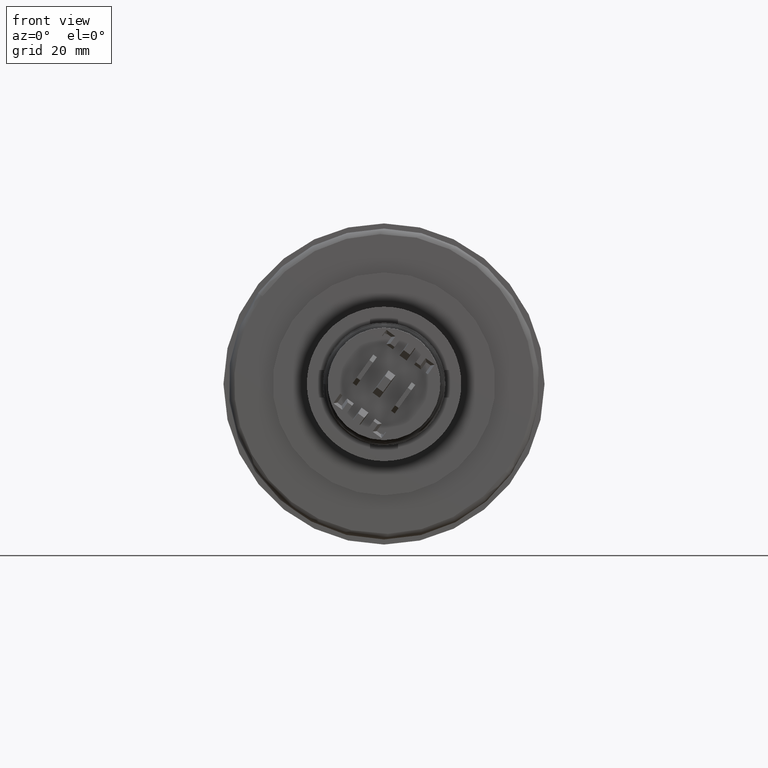
[diagram: clean part render]
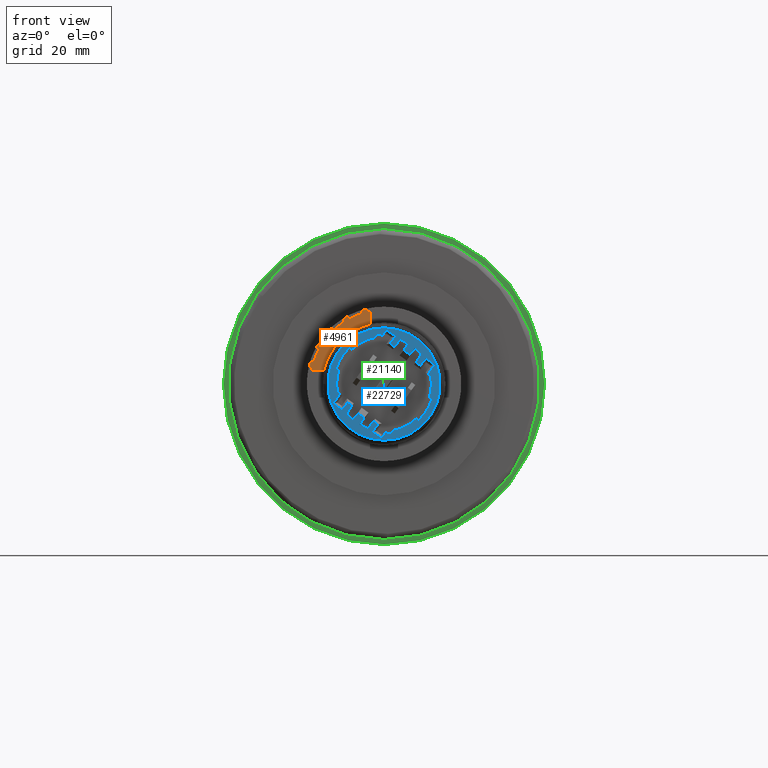
[diagram: same view with three faces highlighted in distinct colors, each labeled with its STEP entity id]
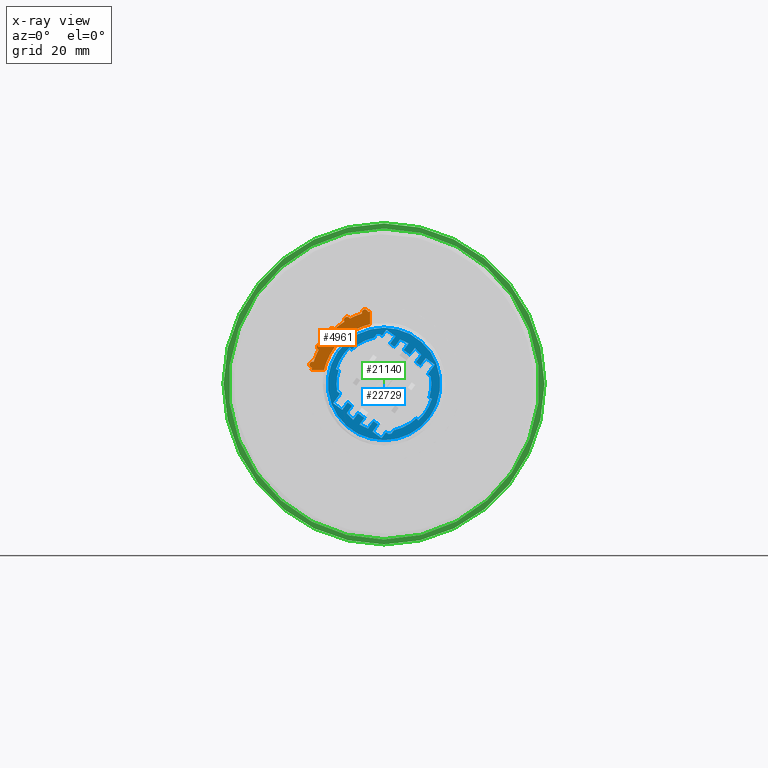
[diagram: x-ray of the same camera — body ghosted, the three highlighted faces saturated]
A machine part, front view with three faces highlighted in distinct colors.
The next image is the same camera in x-ray (body ghosted, the three faces saturated) — at least one of them is partly hidden behind the body in this view.
Their STEP definitions:

[orange] entity #4961 — the highlighted planar face has unit normal (0, -1, 0).
#106 = DIRECTION ( 'NONE',  ( 0.0000000000000000000, 1.000000000000000000, 0.0000000000000000000 ) ) ;
#154 = AXIS2_PLACEMENT_3D ( 'NONE', #5065, #17495, #6865 ) ;
#289 = AXIS2_PLACEMENT_3D ( 'NONE', #12163, #1410, #13935 ) ;
#300 = VERTEX_POINT ( 'NONE', #22346 ) ;
#347 = CARTESIAN_POINT ( 'NONE',  ( -0.2597496053560820500, -1.366141732283465500, 0.3482410758244937600 ) ) ;
#512 = CIRCLE ( 'NONE', #16972, 0.02263779527559057000 ) ;
#541 = AXIS2_PLACEMENT_3D ( 'NONE', #13089, #2396, #14902 ) ;
#567 = CARTESIAN_POINT ( 'NONE',  ( -0.09842519685039348400, -1.366141732283464600, 0.5122840031367366100 ) ) ;
#593 = DIRECTION ( 'NONE',  ( 0.0000000000000000000, 0.0000000000000000000, 1.000000000000000000 ) ) ;
#880 = ORIENTED_EDGE ( 'NONE', *, *, #7342, .F. ) ;
#1024 = ORIENTED_EDGE ( 'NONE', *, *, #20943, .F. ) ;
#1344 = AXIS2_PLACEMENT_3D ( 'NONE', #23120, #12534, #1823 ) ;
#1380 = ORIENTED_EDGE ( 'NONE', *, *, #20737, .F. ) ;
#1410 = DIRECTION ( 'NONE',  ( 0.0000000000000000000, 1.000000000000000000, 0.0000000000000000000 ) ) ;
#1729 = DIRECTION ( 'NONE',  ( -6.123032000000000300E-017, 1.000000000000000000, 6.123032000000000300E-017 ) ) ;
#1756 = VERTEX_POINT ( 'NONE', #6507 ) ;
#1823 = DIRECTION ( 'NONE',  ( 0.0000000000000000000, 0.0000000000000000000, 1.000000000000000000 ) ) ;
#1973 = ORIENTED_EDGE ( 'NONE', *, *, #21035, .F. ) ;
#2205 = CARTESIAN_POINT ( 'NONE',  ( -0.3197517589457649100, -1.366141732283464600, 0.2954151513691956100 ) ) ;
#2227 = CARTESIAN_POINT ( 'NONE',  ( -0.2271832924560667200, -1.366141732283465000, 0.3686978800177334600 ) ) ;
#2374 = CARTESIAN_POINT ( 'NONE',  ( -0.1350138719530869500, -1.366141732283464600, 0.5038786298555180100 ) ) ;
#2396 = DIRECTION ( 'NONE',  ( 0.0000000000000000000, 1.000000000000000000, 0.0000000000000000000 ) ) ;
#3301 = CIRCLE ( 'NONE', #19958, 0.02263779527559051800 ) ;
#3688 = ORIENTED_EDGE ( 'NONE', *, *, #20866, .F. ) ;
#3887 = VERTEX_POINT ( 'NONE', #7307 ) ;
#4037 = CARTESIAN_POINT ( 'NONE',  ( -0.3590821806192726100, -1.366141732283464600, 0.2445445269965523800 ) ) ;
#4187 = DIRECTION ( 'NONE',  ( 0.0000000000000000000, 0.0000000000000000000, 1.000000000000000000 ) ) ;
#4210 = VERTEX_POINT ( 'NONE', #19994 ) ;
#4324 = DIRECTION ( 'NONE',  ( 0.0000000000000000000, 1.000000000000000000, 0.0000000000000000000 ) ) ;
#4657 = AXIS2_PLACEMENT_3D ( 'NONE', #18828, #8210, #20589 ) ;
#4792 = AXIS2_PLACEMENT_3D ( 'NONE', #8053, #20436, #9863 ) ;
#4816 = AXIS2_PLACEMENT_3D ( 'NONE', #21111, #10522, #22892 ) ;
#4961 = ADVANCED_FACE ( 'NONE', ( #19178 ), #8380, .T. ) ;
#5065 = CARTESIAN_POINT ( 'NONE',  ( -0.2608267716535434500, -1.366141732283464600, 0.4517652204781026400 ) ) ;
#5148 = EDGE_CURVE ( 'NONE', #4210, #3887, #3301, .T. ) ;
#5269 = VERTEX_POINT ( 'NONE', #6377 ) ;
#5282 = CIRCLE ( 'NONE', #4792, 0.02263779527559051800 ) ;
#5689 = CARTESIAN_POINT ( 'NONE',  ( 6.993531496062993800E-017, -1.366141732283464600, 1.311287007874015700E-016 ) ) ;
#5795 = ORIENTED_EDGE ( 'NONE', *, *, #22522, .F. ) ;
#5840 = CARTESIAN_POINT ( 'NONE',  ( -0.3839109235958693100, -1.366141732283464600, 0.2033482826158637700 ) ) ;
#6004 = VERTEX_POINT ( 'NONE', #19554 ) ;
#6022 = CARTESIAN_POINT ( 'NONE',  ( -0.5122840031367365000, -1.366141732283464600, 0.09842519685039385900 ) ) ;
#6377 = CARTESIAN_POINT ( 'NONE',  ( -0.4517652204781028600, -1.366141732283464600, 0.2834645669291334700 ) ) ;
#6507 = CARTESIAN_POINT ( 'NONE',  ( -0.3688647579024312800, -1.366141732283464600, 0.3915025531780217400 ) ) ;
#6556 = CARTESIAN_POINT ( 'NONE',  ( -0.5092618826978239100, -1.366141732283464600, 0.1130254576451976800 ) ) ;
#6796 = LINE ( 'NONE', #17162, #10987 ) ;
#6865 = DIRECTION ( 'NONE',  ( 0.0000000000000000000, 0.0000000000000000000, 1.000000000000000000 ) ) ;
#6911 = AXIS2_PLACEMENT_3D ( 'NONE', #12440, #1729, #14242 ) ;
#6922 = VERTEX_POINT ( 'NONE', #21317 ) ;
#7004 = CIRCLE ( 'NONE', #154, 0.02263779527559058700 ) ;
#7184 = CARTESIAN_POINT ( 'NONE',  ( -0.3688647579024312800, -1.366141732283464600, 0.3688647579024311700 ) ) ;
#7187 = EDGE_CURVE ( 'NONE', #12870, #5269, #14985, .T. ) ;
#7200 = ORIENTED_EDGE ( 'NONE', *, *, #12352, .F. ) ;
#7307 = CARTESIAN_POINT ( 'NONE',  ( -0.1350138719530869500, -1.366141732283464600, 0.5265164251311085200 ) ) ;
#7313 = EDGE_CURVE ( 'NONE', #17860, #1756, #21574, .T. ) ;
#7329 = DIRECTION ( 'NONE',  ( 0.0000000000000000000, 1.000000000000000000, 0.0000000000000000000 ) ) ;
#7342 = EDGE_CURVE ( 'NONE', #16706, #300, #14127, .T. ) ;
#7478 = DIRECTION ( 'NONE',  ( 0.0000000000000000000, 0.0000000000000000000, 1.000000000000000000 ) ) ;
#7552 = CARTESIAN_POINT ( 'NONE',  ( -0.1907682790094035500, -1.366141732283464400, 0.3899888910965390600 ) ) ;
#7555 = CIRCLE ( 'NONE', #289, 0.5216535433070866900 ) ;
#7639 = CARTESIAN_POINT ( 'NONE',  ( -0.4039410939763878900, -1.366141732283464600, 0.1599126358994504800 ) ) ;
#7660 = CARTESIAN_POINT ( 'NONE',  ( -0.2033310471216363800, -1.366141732283464600, 0.3834399840505783300 ) ) ;
#7787 = CIRCLE ( 'NONE', #4657, 0.02263779527559055300 ) ;
#8040 = CARTESIAN_POINT ( 'NONE',  ( -0.1130254576451982000, -1.366141732283464600, 0.5092618826978240200 ) ) ;
#8053 = CARTESIAN_POINT ( 'NONE',  ( -0.1350138719530869500, -1.366141732283464600, 0.5038786298555180100 ) ) ;
#8210 = DIRECTION ( 'NONE',  ( 0.0000000000000000000, 1.000000000000000000, 0.0000000000000000000 ) ) ;
#8331 = ORIENTED_EDGE ( 'NONE', *, *, #21008, .F. ) ;
#8380 = PLANE ( 'NONE',  #20568 ) ;
#8454 = DIRECTION ( 'NONE',  ( 0.0000000000000000000, -1.000000000000000000, 0.0000000000000000000 ) ) ;
#8487 = CARTESIAN_POINT ( 'NONE',  ( -0.4975464564180052700, -1.366141732283464600, 0.1567480237538080900 ) ) ;
#8492 = VERTEX_POINT ( 'NONE', #8487 ) ;
#8528 = DIRECTION ( 'NONE',  ( 0.0000000000000000000, 1.000000000000000000, 0.0000000000000000000 ) ) ;
#8692 = CARTESIAN_POINT ( 'NONE',  ( -0.2271832924560667200, -1.366141732283465000, 0.3686978800177334600 ) ) ;
#8695 = CIRCLE ( 'NONE', #6911, 0.4330708661417324000 ) ;
#8959 = DIRECTION ( 'NONE',  ( 0.0000000000000000000, 0.0000000000000000000, 1.000000000000000000 ) ) ;
#9036 = LINE ( 'NONE', #22320, #13753 ) ;
#9057 = CARTESIAN_POINT ( 'NONE',  ( -0.4626560638224167500, -1.366141732283464600, 0.2409808827546003300 ) ) ;
#9119 = VERTEX_POINT ( 'NONE', #6022 ) ;
#9157 = ORIENTED_EDGE ( 'NONE', *, *, #5148, .F. ) ;
#9380 = VERTEX_POINT ( 'NONE', #22418 ) ;
#9439 = CARTESIAN_POINT ( 'NONE',  ( -0.4191765491987241000, -1.366141732283465200, 0.1141773463922378900 ) ) ;
#9863 = DIRECTION ( 'NONE',  ( 0.0000000000000000000, 0.0000000000000000000, 1.000000000000000000 ) ) ;
#9871 = DIRECTION ( 'NONE',  ( 0.0000000000000000000, 1.000000000000000000, 0.0000000000000000000 ) ) ;
#9967 = DIRECTION ( 'NONE',  ( -0.0000000000000000000, 0.0000000000000000000, 1.000000000000000000 ) ) ;
#10522 = DIRECTION ( 'NONE',  ( 0.0000000000000000000, 1.000000000000000000, 0.0000000000000000000 ) ) ;
#10673 = ORIENTED_EDGE ( 'NONE', *, *, #20977, .F. ) ;
#10709 = VERTEX_POINT ( 'NONE', #8040 ) ;
#10916 = CARTESIAN_POINT ( 'NONE',  ( -0.5038786298555177900, -1.366141732283464600, 0.1350138719530861700 ) ) ;
#10987 = VECTOR ( 'NONE', #22469, 39.37007874015748100 ) ;
#11154 = CARTESIAN_POINT ( 'NONE',  ( -0.2465601585790106200, -1.366141732283463900, 0.3577034228271948600 ) ) ;
#11241 = VERTEX_POINT ( 'NONE', #18282 ) ;
#11384 = DIRECTION ( 'NONE',  ( 0.0000000000000000000, 1.000000000000000000, 0.0000000000000000000 ) ) ;
#11443 = EDGE_CURVE ( 'NONE', #21548, #17902, #8695, .T. ) ;
#11698 = CARTESIAN_POINT ( 'NONE',  ( -0.3845209987728074300, -1.366141732283464600, 0.3525138589440154300 ) ) ;
#11769 = CARTESIAN_POINT ( 'NONE',  ( -0.09842519685039348400, -1.366141732283464600, 0.4217378993233967800 ) ) ;
#12163 = CARTESIAN_POINT ( 'NONE',  ( 6.993531496062993800E-017, -1.366141732283464600, 1.311287007874015700E-016 ) ) ;
#12352 = EDGE_CURVE ( 'NONE', #3887, #10709, #5282, .T. ) ;
#12386 = EDGE_CURVE ( 'NONE', #5269, #9380, #7787, .T. ) ;
#12440 = CARTESIAN_POINT ( 'NONE',  ( 1.053784206299212500E-016, -1.366141732283464600, -1.795928677165353200E-017 ) ) ;
#12534 = DIRECTION ( 'NONE',  ( 0.0000000000000000000, 1.000000000000000000, 0.0000000000000000000 ) ) ;
#12689 = DIRECTION ( 'NONE',  ( 0.0000000000000000000, 0.0000000000000000000, 1.000000000000000000 ) ) ;
#12870 = VERTEX_POINT ( 'NONE', #9057 ) ;
#12922 = CARTESIAN_POINT ( 'NONE',  ( -0.2972719823533173700, -1.366141732283465700, 0.3180323436997245000 ) ) ;
#13089 = CARTESIAN_POINT ( 'NONE',  ( 6.993531496062993800E-017, -1.366141732283464600, 1.311287007874015700E-016 ) ) ;
#13536 = CIRCLE ( 'NONE', #20896, 0.5216535433070866900 ) ;
#13595 = VERTEX_POINT ( 'NONE', #6556 ) ;
#13753 = VECTOR ( 'NONE', #9967, 39.37007874015748100 ) ;
#13935 = DIRECTION ( 'NONE',  ( 0.0000000000000000000, 0.0000000000000000000, 1.000000000000000000 ) ) ;
#14115 = VERTEX_POINT ( 'NONE', #567 ) ;
#14127 = CIRCLE ( 'NONE', #15249, 0.02263779527559058700 ) ;
#14242 = DIRECTION ( 'NONE',  ( -3.552713678800500900E-015, 0.0000000000000000000, -1.000000000000000000 ) ) ;
#14714 = CARTESIAN_POINT ( 'NONE',  ( -0.3496902841788365700, -1.366141732283464600, 0.2577933930378390500 ) ) ;
#14739 = CARTESIAN_POINT ( 'NONE',  ( -0.2154640323778600800, -1.366141732283465000, 0.3763360682219065700 ) ) ;
#14881 = DIRECTION ( 'NONE',  ( 0.0000000000000000000, 1.000000000000000000, 0.0000000000000000000 ) ) ;
#14902 = DIRECTION ( 'NONE',  ( 0.0000000000000000000, 0.0000000000000000000, 1.000000000000000000 ) ) ;
#14985 = CIRCLE ( 'NONE', #15552, 0.02263779527559055300 ) ;
#15009 = CARTESIAN_POINT ( 'NONE',  ( -0.4517652204781028600, -1.366141732283464600, 0.2608267716535429000 ) ) ;
#15132 = ORIENTED_EDGE ( 'NONE', *, *, #20833, .F. ) ;
#15249 = AXIS2_PLACEMENT_3D ( 'NONE', #21961, #11384, #593 ) ;
#15424 = AXIS2_PLACEMENT_3D ( 'NONE', #20444, #9871, #22225 ) ;
#15552 = AXIS2_PLACEMENT_3D ( 'NONE', #15009, #4324, #16768 ) ;
#15763 = CIRCLE ( 'NONE', #22388, 0.02263779527559057000 ) ;
#16161 = CIRCLE ( 'NONE', #21478, 0.02263779527559058700 ) ;
#16482 = CARTESIAN_POINT ( 'NONE',  ( -0.3761760279904813900, -1.366141732283464600, 0.2173330027574370500 ) ) ;
#16495 = ORIENTED_EDGE ( 'NONE', *, *, #20773, .F. ) ;
#16508 = CARTESIAN_POINT ( 'NONE',  ( -0.3525138589440154900, -1.366141732283464600, 0.3845209987728073800 ) ) ;
#16706 = VERTEX_POINT ( 'NONE', #17130 ) ;
#16768 = DIRECTION ( 'NONE',  ( 0.0000000000000000000, 0.0000000000000000000, 1.000000000000000000 ) ) ;
#16791 = ORIENTED_EDGE ( 'NONE', *, *, #7313, .F. ) ;
#16822 = ORIENTED_EDGE ( 'NONE', *, *, #20972, .F. ) ;
#16972 = AXIS2_PLACEMENT_3D ( 'NONE', #19125, #8528, #20911 ) ;
#17130 = CARTESIAN_POINT ( 'NONE',  ( -0.2801814631078272100, -1.366141732283464600, 0.4400235982030917300 ) ) ;
#17162 = CARTESIAN_POINT ( 'NONE',  ( -0.2726377952755929000, -1.366141732283464600, 0.09842519685039385900 ) ) ;
#17495 = DIRECTION ( 'NONE',  ( 0.0000000000000000000, 1.000000000000000000, 0.0000000000000000000 ) ) ;
#17860 = VERTEX_POINT ( 'NONE', #11698 ) ;
#17902 = VERTEX_POINT ( 'NONE', #11769 ) ;
#17969 = CARTESIAN_POINT ( 'NONE',  ( 6.993531496062993800E-017, -1.366141732283464600, 1.311287007874015700E-016 ) ) ;
#17991 = B_SPLINE_CURVE_WITH_KNOTS ( 'NONE', 3,
 ( #7552, #18194, #21727, #11154, #347, #12922, #2205, #14714, #4037, #16482, #5840, #18276, #7639, #20016, #9439, #21805 ),
 .UNSPECIFIED., .F., .F.,
 ( 4, 2, 2, 2, 2, 2, 2, 4 ),
 ( 0.0000000000000000000, 0.001227786105606824500, 0.002455572211213649100, 0.004911144422427297200, 0.006138930528034125000, 0.007366716633640953700, 0.008594502739247783200, 0.009822288844854611800 ),
 .UNSPECIFIED. ) ;
#18067 = CARTESIAN_POINT ( 'NONE',  ( -0.1907682790094035500, -1.366141732283464400, 0.3899888910965390600 ) ) ;
#18116 = DIRECTION ( 'NONE',  ( 0.0000000000000000000, 1.000000000000000000, 0.0000000000000000000 ) ) ;
#18194 = CARTESIAN_POINT ( 'NONE',  ( -0.2052965099724422300, -1.366141732283464400, 0.3828822127240417700 ) ) ;
#18276 = CARTESIAN_POINT ( 'NONE',  ( -0.3977934790245087900, -1.366141732283464600, 0.1746381096571769900 ) ) ;
#18282 = CARTESIAN_POINT ( 'NONE',  ( -0.5038786298555177900, -1.366141732283464600, 0.1576516672286767400 ) ) ;
#18416 = B_SPLINE_CURVE_WITH_KNOTS ( 'NONE', 3,
 ( #2227, #14739, #7660, #20037 ),
 .UNSPECIFIED., .F., .F.,
 ( 4, 4 ),
 ( 0.008587309049879848100, 0.009662209928617554100 ),
 .UNSPECIFIED. ) ;
#18497 = ORIENTED_EDGE ( 'NONE', *, *, #19315, .T. ) ;
#18656 = CIRCLE ( 'NONE', #541, 0.5216535433070866900 ) ;
#18704 = ORIENTED_EDGE ( 'NONE', *, *, #19368, .T. ) ;
#18828 = CARTESIAN_POINT ( 'NONE',  ( -0.4517652204781028600, -1.366141732283464600, 0.2608267716535429000 ) ) ;
#18973 = ORIENTED_EDGE ( 'NONE', *, *, #12386, .F. ) ;
#19028 = VERTEX_POINT ( 'NONE', #18067 ) ;
#19062 = CARTESIAN_POINT ( 'NONE',  ( -0.2726377952755929000, -1.366141732283464600, 1.311287007874015700E-016 ) ) ;
#19125 = CARTESIAN_POINT ( 'NONE',  ( -0.5038786298555177900, -1.366141732283464600, 0.1350138719530861700 ) ) ;
#19136 = VERTEX_POINT ( 'NONE', #16508 ) ;
#19178 = FACE_OUTER_BOUND ( 'NONE', #21712, .T. ) ;
#19207 = ORIENTED_EDGE ( 'NONE', *, *, #20940, .F. ) ;
#19315 = EDGE_CURVE ( 'NONE', #17902, #14115, #9036, .T. ) ;
#19368 = EDGE_CURVE ( 'NONE', #9119, #6922, #6796, .T. ) ;
#19405 = ORIENTED_EDGE ( 'NONE', *, *, #7187, .F. ) ;
#19554 = CARTESIAN_POINT ( 'NONE',  ( -0.2409808827546008100, -1.366141732283464600, 0.4626560638224165300 ) ) ;
#19559 = DIRECTION ( 'NONE',  ( 0.0000000000000000000, 1.000000000000000000, 0.0000000000000000000 ) ) ;
#19695 = ORIENTED_EDGE ( 'NONE', *, *, #11443, .T. ) ;
#19708 = DIRECTION ( 'NONE',  ( 0.0000000000000000000, 0.0000000000000000000, 1.000000000000000000 ) ) ;
#19958 = AXIS2_PLACEMENT_3D ( 'NONE', #2374, #14881, #4187 ) ;
#19994 = CARTESIAN_POINT ( 'NONE',  ( -0.1567480237538088100, -1.366141732283464600, 0.4975464564180053800 ) ) ;
#20016 = CARTESIAN_POINT ( 'NONE',  ( -0.4146270602845088500, -1.366141732283465000, 0.1297106757479030100 ) ) ;
#20037 = CARTESIAN_POINT ( 'NONE',  ( -0.1907682790094035500, -1.366141732283464400, 0.3899888910965390600 ) ) ;
#20436 = DIRECTION ( 'NONE',  ( 0.0000000000000000000, 1.000000000000000000, 0.0000000000000000000 ) ) ;
#20437 = CIRCLE ( 'NONE', #22217, 0.5216535433070866900 ) ;
#20444 = CARTESIAN_POINT ( 'NONE',  ( -0.3688647579024312800, -1.366141732283464600, 0.3688647579024311700 ) ) ;
#20568 = AXIS2_PLACEMENT_3D ( 'NONE', #19062, #8454, #20835 ) ;
#20589 = DIRECTION ( 'NONE',  ( 0.0000000000000000000, 0.0000000000000000000, 1.000000000000000000 ) ) ;
#20737 = EDGE_CURVE ( 'NONE', #21548, #19028, #18416, .T. ) ;
#20773 = EDGE_CURVE ( 'NONE', #10709, #14115, #18656, .T. ) ;
#20833 = EDGE_CURVE ( 'NONE', #6004, #4210, #7555, .T. ) ;
#20834 = CIRCLE ( 'NONE', #1344, 0.5216535433070866900 ) ;
#20835 = DIRECTION ( 'NONE',  ( 0.0000000000000000000, -0.0000000000000000000, -1.000000000000000000 ) ) ;
#20866 = EDGE_CURVE ( 'NONE', #300, #6004, #7004, .T. ) ;
#20896 = AXIS2_PLACEMENT_3D ( 'NONE', #5689, #18116, #7478 ) ;
#20904 = EDGE_CURVE ( 'NONE', #19136, #16706, #23061, .T. ) ;
#20911 = DIRECTION ( 'NONE',  ( 0.0000000000000000000, 0.0000000000000000000, 1.000000000000000000 ) ) ;
#20940 = EDGE_CURVE ( 'NONE', #1756, #19136, #16161, .T. ) ;
#20943 = EDGE_CURVE ( 'NONE', #9380, #17860, #20834, .T. ) ;
#20972 = EDGE_CURVE ( 'NONE', #8492, #12870, #20437, .T. ) ;
#20977 = EDGE_CURVE ( 'NONE', #11241, #8492, #15763, .T. ) ;
#21008 = EDGE_CURVE ( 'NONE', #9119, #13595, #13536, .T. ) ;
#21035 = EDGE_CURVE ( 'NONE', #19028, #6922, #17991, .T. ) ;
#21111 = CARTESIAN_POINT ( 'NONE',  ( 6.993531496062993800E-017, -1.366141732283464600, 1.311287007874015700E-016 ) ) ;
#21317 = CARTESIAN_POINT ( 'NONE',  ( -0.4228431766977907000, -1.366141732283465000, 0.09842519685039405300 ) ) ;
#21478 = AXIS2_PLACEMENT_3D ( 'NONE', #7184, #19559, #8959 ) ;
#21548 = VERTEX_POINT ( 'NONE', #8692 ) ;
#21574 = CIRCLE ( 'NONE', #15424, 0.02263779527559058700 ) ;
#21712 = EDGE_LOOP ( 'NONE', ( #1380, #19695, #18497, #16495, #7200, #9157, #15132, #3688, #880, #22323, #19207, #16791, #1024, #18973, #19405, #16822, #10673, #5795, #8331, #18704, #1973 ) ) ;
#21727 = CARTESIAN_POINT ( 'NONE',  ( -0.2193586157999347900, -1.366141732283463900, 0.3750005975663695500 ) ) ;
#21805 = CARTESIAN_POINT ( 'NONE',  ( -0.4228431766977907000, -1.366141732283465000, 0.09842519685039405300 ) ) ;
#21961 = CARTESIAN_POINT ( 'NONE',  ( -0.2608267716535434500, -1.366141732283464600, 0.4517652204781026400 ) ) ;
#22217 = AXIS2_PLACEMENT_3D ( 'NONE', #17969, #7329, #19708 ) ;
#22225 = DIRECTION ( 'NONE',  ( 0.0000000000000000000, 0.0000000000000000000, 1.000000000000000000 ) ) ;
#22320 = CARTESIAN_POINT ( 'NONE',  ( -0.09842519685039344300, -1.366141732283464600, 1.311287007874015700E-016 ) ) ;
#22323 = ORIENTED_EDGE ( 'NONE', *, *, #20904, .F. ) ;
#22346 = CARTESIAN_POINT ( 'NONE',  ( -0.2608267716535434500, -1.366141732283464600, 0.4744030157536932000 ) ) ;
#22388 = AXIS2_PLACEMENT_3D ( 'NONE', #10916, #106, #12689 ) ;
#22418 = CARTESIAN_POINT ( 'NONE',  ( -0.4400235982030918400, -1.366141732283464600, 0.2801814631078267100 ) ) ;
#22469 = DIRECTION ( 'NONE',  ( 1.000000000000000000, 0.0000000000000000000, 0.0000000000000000000 ) ) ;
#22522 = EDGE_CURVE ( 'NONE', #13595, #11241, #512, .T. ) ;
#22892 = DIRECTION ( 'NONE',  ( 0.0000000000000000000, 0.0000000000000000000, 1.000000000000000000 ) ) ;
#23061 = CIRCLE ( 'NONE', #4816, 0.5216535433070866900 ) ;
#23120 = CARTESIAN_POINT ( 'NONE',  ( 6.993531496062993800E-017, -1.366141732283464600, 1.311287007874015700E-016 ) ) ;

[blue] entity #22729 — the highlighted planar face has unit normal (0, 1, 0).
#64 = VECTOR ( 'NONE', #5353, 39.37007874015748100 ) ;
#98 = DIRECTION ( 'NONE',  ( 0.5855404833236541600, 0.0000000000000000000, 0.8106431658807107300 ) ) ;
#145 = CIRCLE ( 'NONE', #14413, 0.3976377952755906800 ) ;
#247 = CARTESIAN_POINT ( 'NONE',  ( 0.04292750141351870500, -1.897637795275591200, 0.2846748502897189500 ) ) ;
#362 = LINE ( 'NONE', #8787, #5218 ) ;
#441 = CARTESIAN_POINT ( 'NONE',  ( -0.2457041598755713200, -1.897637795275591000, -0.1624892729587404900 ) ) ;
#446 = VERTEX_POINT ( 'NONE', #6716 ) ;
#564 = VECTOR ( 'NONE', #6310, 39.37007874015748900 ) ;
#1223 = ORIENTED_EDGE ( 'NONE', *, *, #17691, .F. ) ;
#1445 = LINE ( 'NONE', #20021, #15722 ) ;
#1472 = CARTESIAN_POINT ( 'NONE',  ( -0.03140485153872309100, -1.897637795275591400, 0.3529362356011818100 ) ) ;
#1576 = ORIENTED_EDGE ( 'NONE', *, *, #17891, .F. ) ;
#1635 = CARTESIAN_POINT ( 'NONE',  ( -0.2944498597456027800, -1.897637795275591200, -0.1824024226498164300 ) ) ;
#1713 = CARTESIAN_POINT ( 'NONE',  ( -0.1837099842276450900, -1.897637795275591000, -0.2072686544424544300 ) ) ;
#1720 = LINE ( 'NONE', #11707, #19540 ) ;
#1744 = CARTESIAN_POINT ( 'NONE',  ( 0.05289826916319863300, -1.897637795275591400, -0.3503598496118528500 ) ) ;
#1845 = ORIENTED_EDGE ( 'NONE', *, *, #10480, .F. ) ;
#2009 = DIRECTION ( 'NONE',  ( -0.5855404833236538300, 0.0000000000000000000, -0.8106431658807109500 ) ) ;
#2208 = LINE ( 'NONE', #12418, #11188 ) ;
#2336 = VECTOR ( 'NONE', #12757, 39.37007874015748900 ) ;
#2436 = CARTESIAN_POINT ( 'NONE',  ( 0.1729424344794560400, -1.897637795275591400, 0.2864936968447422400 ) ) ;
#2449 = CARTESIAN_POINT ( 'NONE',  ( 0.1837099842276434200, -1.897637795275591000, 0.2072686544424558200 ) ) ;
#2467 = VERTEX_POINT ( 'NONE', #12841 ) ;
#2621 = ORIENTED_EDGE ( 'NONE', *, *, #16222, .F. ) ;
#2637 = VECTOR ( 'NONE', #9920, 39.37007874015748900 ) ;
#2681 = CIRCLE ( 'NONE', #6606, 0.3346456692913387100 ) ;
#2782 = DIRECTION ( 'NONE',  ( 0.8106431658807109500, 0.0000000000000000000, -0.5855404833236537200 ) ) ;
#2788 = CARTESIAN_POINT ( 'NONE',  ( -0.08061878843061116900, -1.897637795275591200, -0.3368560147076294900 ) ) ;
#2809 = ORIENTED_EDGE ( 'NONE', *, *, #17505, .F. ) ;
#2932 = DIRECTION ( 'NONE',  ( 0.8106431658807097300, 0.0000000000000000000, -0.5855404833236552700 ) ) ;
#2964 = DIRECTION ( 'NONE',  ( -6.123032000000000300E-017, 1.000000000000000000, 6.123032000000000300E-017 ) ) ;
#2965 = CARTESIAN_POINT ( 'NONE',  ( 0.2176235538587074900, -1.897637795275591400, 0.2542198119371389400 ) ) ;
#2988 = ORIENTED_EDGE ( 'NONE', *, *, #9779, .T. ) ;
#3086 = DIRECTION ( 'NONE',  ( 0.5855404833236530500, 0.0000000000000000000, 0.8106431658807115000 ) ) ;
#3098 = DIRECTION ( 'NONE',  ( 0.5614887610392940200, 0.0000000000000000000, -0.8274843631311460400 ) ) ;
#3123 = CARTESIAN_POINT ( 'NONE',  ( -0.1729424344794579000, -1.897637795275591400, -0.2864936968447410200 ) ) ;
#3143 = AXIS2_PLACEMENT_3D ( 'NONE', #4094, #16544, #5899 ) ;
#3224 = CARTESIAN_POINT ( 'NONE',  ( -0.1133105268871804900, -1.897637795275591400, -0.3148784661929068800 ) ) ;
#3248 = CARTESIAN_POINT ( 'NONE',  ( -0.06952274411784498100, -1.897637795275591400, 0.3273443325090150700 ) ) ;
#3286 = CARTESIAN_POINT ( 'NONE',  ( 0.2306722291059419300, -1.897637795275591200, -0.2424418418811899700 ) ) ;
#3288 = ORIENTED_EDGE ( 'NONE', *, *, #17654, .F. ) ;
#3297 = DIRECTION ( 'NONE',  ( 6.123032000000000300E-017, -1.000000000000000000, -6.123032000000000300E-017 ) ) ;
#3376 = VERTEX_POINT ( 'NONE', #3224 ) ;
#3513 = CARTESIAN_POINT ( 'NONE',  ( 1.006776677165354700E-016, -1.897637795275591200, -0.3976377952755906800 ) ) ;
#3543 = CARTESIAN_POINT ( 'NONE',  ( 0.2344270669770781300, -1.897637795275591200, 0.2398315013654189800 ) ) ;
#3560 = VERTEX_POINT ( 'NONE', #1635 ) ;
#3566 = VECTOR ( 'NONE', #3098, 39.37007874015748900 ) ;
#3645 = CARTESIAN_POINT ( 'NONE',  ( -0.01678861788882114000, -1.897637795275591200, -0.3829615645756351800 ) ) ;
#3669 = ORIENTED_EDGE ( 'NONE', *, *, #17613, .F. ) ;
#3798 = DIRECTION ( 'NONE',  ( -0.8106431658807120600, 0.0000000000000000000, 0.5855404833236522700 ) ) ;
#3860 = CARTESIAN_POINT ( 'NONE',  ( -0.05289826916319834800, -1.897637795275591400, 0.3503598496118526300 ) ) ;
#3979 = CARTESIAN_POINT ( 'NONE',  ( -0.2176235538587091000, -1.897637795275591400, -0.2542198119371373900 ) ) ;
#3997 = CIRCLE ( 'NONE', #8535, 0.3543307086614173600 ) ;
#4069 = VECTOR ( 'NONE', #5748, 39.37007874015748100 ) ;
#4094 = CARTESIAN_POINT ( 'NONE',  ( 1.030883102362204900E-016, -1.897637795275591200, -1.566917637795276800E-017 ) ) ;
#4142 = ORIENTED_EDGE ( 'NONE', *, *, #13843, .T. ) ;
#4173 = CARTESIAN_POINT ( 'NONE',  ( -0.3090623558032747400, -1.897637795275591200, -0.06815816572842342500 ) ) ;
#4183 = DIRECTION ( 'NONE',  ( 6.123032000000000300E-017, -1.000000000000000000, -6.123032000000000300E-017 ) ) ;
#4419 = ORIENTED_EDGE ( 'NONE', *, *, #17855, .F. ) ;
#4451 = VERTEX_POINT ( 'NONE', #18024 ) ;
#4462 = CARTESIAN_POINT ( 'NONE',  ( 0.2931048131678277700, -1.897637795275591200, 0.07968455319542444600 ) ) ;
#4678 = VERTEX_POINT ( 'NONE', #14948 ) ;
#4860 = VECTOR ( 'NONE', #98, 39.37007874015748100 ) ;
#4937 = LINE ( 'NONE', #18423, #14416 ) ;
#5144 = LINE ( 'NONE', #10592, #14627 ) ;
#5208 = CARTESIAN_POINT ( 'NONE',  ( 0.2418675708200500300, -1.897637795275591200, -0.2589407833581076100 ) ) ;
#5218 = VECTOR ( 'NONE', #12145, 39.37007874015748900 ) ;
#5251 = B_SPLINE_CURVE_WITH_KNOTS ( 'NONE', 3,
 ( #7171, #3543, #14235, #8944 ),
 .UNSPECIFIED., .F., .F.,
 ( 4, 4 ),
 ( 0.0000000000000000000, 1.000000000000000000 ),
 .UNSPECIFIED. ) ;
#5336 = DIRECTION ( 'NONE',  ( -0.5855404833236539400, 0.0000000000000000000, -0.8106431658807107300 ) ) ;
#5353 = DIRECTION ( 'NONE',  ( -0.5855404833236531600, 0.0000000000000000000, -0.8106431658807115000 ) ) ;
#5485 = CARTESIAN_POINT ( 'NONE',  ( 0.07484258668441284800, -1.897637795275591400, 0.2616220753557168500 ) ) ;
#5489 = LINE ( 'NONE', #12590, #18551 ) ;
#5557 = LINE ( 'NONE', #4462, #14478 ) ;
#5647 = CARTESIAN_POINT ( 'NONE',  ( -0.1113655349275907100, -1.897637795275591200, -0.2012444370249843500 ) ) ;
#5724 = ORIENTED_EDGE ( 'NONE', *, *, #16838, .T. ) ;
#5748 = DIRECTION ( 'NONE',  ( -0.8106431658807109500, 0.0000000000000000000, 0.5855404833236538300 ) ) ;
#5809 = CARTESIAN_POINT ( 'NONE',  ( 0.1560466543068407000, -1.897637795275591200, 0.1689705521173827400 ) ) ;
#5834 = ORIENTED_EDGE ( 'NONE', *, *, #8629, .T. ) ;
#5899 = DIRECTION ( 'NONE',  ( 0.0000000000000000000, 0.0000000000000000000, -1.000000000000000000 ) ) ;
#5977 = B_SPLINE_CURVE_WITH_KNOTS ( 'NONE', 3,
 ( #3979, #14659, #19948, #9382 ),
 .UNSPECIFIED., .F., .F.,
 ( 4, 4 ),
 ( 0.0000000000000000000, 1.000000000000000000 ),
 .UNSPECIFIED. ) ;
#6080 = CARTESIAN_POINT ( 'NONE',  ( 0.01398683664807079700, -1.897637795275591400, -0.3403549257389926200 ) ) ;
#6147 = VERTEX_POINT ( 'NONE', #14561 ) ;
#6180 = DIRECTION ( 'NONE',  ( 6.123032000000000300E-017, -1.000000000000000000, -6.123032000000000300E-017 ) ) ;
#6243 = ORIENTED_EDGE ( 'NONE', *, *, #14018, .T. ) ;
#6269 = VECTOR ( 'NONE', #11235, 39.37007874015748900 ) ;
#6268 = DIRECTION ( 'NONE',  ( -0.8106431658807107300, 0.0000000000000000000, 0.5855404833236539400 ) ) ;
#6310 = DIRECTION ( 'NONE',  ( 0.5855404833236539400, 0.0000000000000000000, 0.8106431658807107300 ) ) ;
#6327 = CARTESIAN_POINT ( 'NONE',  ( -0.3582800302873908000, -1.897637795275591200, -0.1362968727818123200 ) ) ;
#6362 = VERTEX_POINT ( 'NONE', #2449 ) ;
#6409 = CARTESIAN_POINT ( 'NONE',  ( -0.2567585727285094900, -1.897637795275591200, -0.1302212582319045300 ) ) ;
#6494 = ORIENTED_EDGE ( 'NONE', *, *, #18121, .F. ) ;
#6606 = AXIS2_PLACEMENT_3D ( 'NONE', #6921, #19308, #8701 ) ;
#6612 = VECTOR ( 'NONE', #11252, 39.37007874015748100 ) ;
#6637 = AXIS2_PLACEMENT_3D ( 'NONE', #13995, #3297, #15777 ) ;
#6688 = ORIENTED_EDGE ( 'NONE', *, *, #10246, .T. ) ;
#6716 = CARTESIAN_POINT ( 'NONE',  ( -0.2567585727285094900, -1.897637795275591000, -0.1302212582319046100 ) ) ;
#6819 = ORIENTED_EDGE ( 'NONE', *, *, #17545, .F. ) ;
#6848 = CARTESIAN_POINT ( 'NONE',  ( -0.2306722291059417600, -1.897637795275591200, 0.2424418418811899200 ) ) ;
#6858 = LINE ( 'NONE', #6409, #20425 ) ;
#6874 = CARTESIAN_POINT ( 'NONE',  ( 1.006776677165354700E-016, -1.897637795275591200, -1.325853385826774700E-017 ) ) ;
#6897 = VECTOR ( 'NONE', #11385, 39.37007874015748900 ) ;
#6921 = CARTESIAN_POINT ( 'NONE',  ( 1.030883102362204900E-016, -1.897637795275591200, -1.566917637795277500E-017 ) ) ;
#7171 = CARTESIAN_POINT ( 'NONE',  ( 0.2176235538587074900, -1.897637795275591400, 0.2542198119371389400 ) ) ;
#7183 = ORIENTED_EDGE ( 'NONE', *, *, #10011, .F. ) ;
#7225 = CARTESIAN_POINT ( 'NONE',  ( -0.2133170999906139100, -1.897637795275591400, -0.1373164905304598000 ) ) ;
#7422 = VECTOR ( 'NONE', #9410, 39.37007874015748900 ) ;
#7464 = CARTESIAN_POINT ( 'NONE',  ( -0.03859527036969195900, -1.897637795275591200, 0.3522938963606168100 ) ) ;
#7472 = LINE ( 'NONE', #19631, #12203 ) ;
#7473 = DIRECTION ( 'NONE',  ( -6.123032000000000300E-017, 1.000000000000000000, 6.123032000000000300E-017 ) ) ;
#7642 = DIRECTION ( 'NONE',  ( 0.5855404833236539400, 0.0000000000000000000, 0.8106431658807107300 ) ) ;
#7672 = ORIENTED_EDGE ( 'NONE', *, *, #7949, .F. ) ;
#7822 = CARTESIAN_POINT ( 'NONE',  ( 0.06952274411784538400, -1.897637795275591400, -0.3273443325090151200 ) ) ;
#7949 = EDGE_CURVE ( 'NONE', #11396, #14596, #145, .T. ) ;
#7966 = LINE ( 'NONE', #15193, #2637 ) ;
#8001 = AXIS2_PLACEMENT_3D ( 'NONE', #6874, #19254, #8644 ) ;
#8037 = CARTESIAN_POINT ( 'NONE',  ( -0.2633114276603829000, -1.897637795275591400, -0.2065304240030967900 ) ) ;
#8076 = VERTEX_POINT ( 'NONE', #15672 ) ;
#8196 = AXIS2_PLACEMENT_3D ( 'NONE', #20575, #10001, #22355 ) ;
#8199 = ORIENTED_EDGE ( 'NONE', *, *, #15577, .T. ) ;
#8221 = CARTESIAN_POINT ( 'NONE',  ( -0.07484258668441262600, -1.897637795275591400, -0.2616220753557168500 ) ) ;
#8249 = DIRECTION ( 'NONE',  ( -0.8106431658807106100, 0.0000000000000000000, 0.5855404833236542700 ) ) ;
#8307 = VECTOR ( 'NONE', #11837, 39.37007874015748900 ) ;
#8442 = VERTEX_POINT ( 'NONE', #8037 ) ;
#8525 = VECTOR ( 'NONE', #18733, 39.37007874015748900 ) ;
#8535 = AXIS2_PLACEMENT_3D ( 'NONE', #16820, #6180, #18593 ) ;
#8629 = EDGE_CURVE ( 'NONE', #10935, #8786, #7472, .T. ) ;
#8644 = DIRECTION ( 'NONE',  ( 0.0000000000000000000, 0.0000000000000000000, -1.000000000000000000 ) ) ;
#8666 = AXIS2_PLACEMENT_3D ( 'NONE', #14877, #4183, #16627 ) ;
#8701 = DIRECTION ( 'NONE',  ( 0.0000000000000000000, 0.0000000000000000000, -1.000000000000000000 ) ) ;
#8703 = VERTEX_POINT ( 'NONE', #14485 ) ;
#8786 = VERTEX_POINT ( 'NONE', #6080 ) ;
#8787 = CARTESIAN_POINT ( 'NONE',  ( 0.3582800302873909700, -1.897637795275591200, 0.1362968727818121600 ) ) ;
#8811 = EDGE_CURVE ( 'NONE', #6362, #12064, #4937, .T. ) ;
#8944 = CARTESIAN_POINT ( 'NONE',  ( 0.2633114276603831200, -1.897637795275591400, 0.2065304240030967400 ) ) ;
#9038 = ORIENTED_EDGE ( 'NONE', *, *, #17924, .F. ) ;
#9050 = EDGE_CURVE ( 'NONE', #11279, #8442, #5977, .T. ) ;
#9086 = EDGE_CURVE ( 'NONE', #21624, #16108, #13557, .T. ) ;
#9309 = ORIENTED_EDGE ( 'NONE', *, *, #17405, .F. ) ;
#9312 = ORIENTED_EDGE ( 'NONE', *, *, #10861, .F. ) ;
#9339 = CARTESIAN_POINT ( 'NONE',  ( 0.01678861788882670500, -1.897637795275591200, 0.3829615645756390700 ) ) ;
#9374 = LINE ( 'NONE', #13630, #22925 ) ;
#9382 = CARTESIAN_POINT ( 'NONE',  ( -0.2633114276603829000, -1.897637795275591400, -0.2065304240030967900 ) ) ;
#9396 = LINE ( 'NONE', #19837, #4069 ) ;
#9410 = DIRECTION ( 'NONE',  ( -0.5855404833236539400, 0.0000000000000000000, -0.8106431658807107300 ) ) ;
#9560 = ORIENTED_EDGE ( 'NONE', *, *, #17817, .F. ) ;
#9569 = CARTESIAN_POINT ( 'NONE',  ( 0.1133105268871806800, -1.897637795275591400, 0.3148784661929067100 ) ) ;
#9604 = CARTESIAN_POINT ( 'NONE',  ( -0.03140485153872323700, -1.897637795275591400, 0.3529362356011819200 ) ) ;
#9736 = DIRECTION ( 'NONE',  ( 0.0000000000000000000, 1.000000000000000000, 0.0000000000000000000 ) ) ;
#9779 = EDGE_CURVE ( 'NONE', #18306, #10935, #16569, .T. ) ;
#9823 = EDGE_CURVE ( 'NONE', #2467, #22317, #14079, .T. ) ;
#9903 = LINE ( 'NONE', #5208, #18754 ) ;
#9920 = DIRECTION ( 'NONE',  ( 0.5855404833236516100, 0.0000000000000000000, 0.8106431658807123900 ) ) ;
#9956 = CARTESIAN_POINT ( 'NONE',  ( 0.08061878843061520700, -1.897637795275591000, 0.3368560147076347700 ) ) ;
#10001 = DIRECTION ( 'NONE',  ( 6.123032000000000300E-017, -1.000000000000000000, -6.123032000000000300E-017 ) ) ;
#10011 = EDGE_CURVE ( 'NONE', #11279, #21624, #19836, .T. ) ;
#10015 = EDGE_CURVE ( 'NONE', #3376, #14222, #1445, .T. ) ;
#10142 = VECTOR ( 'NONE', #15271, 39.37007874015748100 ) ;
#10246 = EDGE_CURVE ( 'NONE', #10856, #6147, #14334, .T. ) ;
#10249 = B_SPLINE_CURVE_WITH_KNOTS ( 'NONE', 3,
 ( #3860, #14548, #7464, #19840 ),
 .UNSPECIFIED., .F., .F.,
 ( 4, 4 ),
 ( 0.0000000000000000000, 1.000000000000000000 ),
 .UNSPECIFIED. ) ;
#10274 = VECTOR ( 'NONE', #10459, 39.37007874015748900 ) ;
#10323 = VECTOR ( 'NONE', #2009, 39.37007874015748100 ) ;
#10375 = EDGE_CURVE ( 'NONE', #18041, #11942, #9903, .T. ) ;
#10377 = ORIENTED_EDGE ( 'NONE', *, *, #16093, .F. ) ;
#10380 = EDGE_CURVE ( 'NONE', #11509, #11392, #5144, .T. ) ;
#10409 = DIRECTION ( 'NONE',  ( 0.9000057125650512400, 0.0000000000000000000, -0.4358780991863142100 ) ) ;
#10413 = CARTESIAN_POINT ( 'NONE',  ( -0.08061878843061123800, -1.897637795275591000, -0.3368560147076294400 ) ) ;
#10439 = ORIENTED_EDGE ( 'NONE', *, *, #9050, .T. ) ;
#10452 = AXIS2_PLACEMENT_3D ( 'NONE', #18112, #7473, #19853 ) ;
#10459 = DIRECTION ( 'NONE',  ( 0.8106431658807107300, 0.0000000000000000000, -0.5855404833236539400 ) ) ;
#10480 = EDGE_CURVE ( 'NONE', #16641, #15544, #14337, .T. ) ;
#10546 = EDGE_CURVE ( 'NONE', #14734, #16365, #11541, .T. ) ;
#10583 = EDGE_CURVE ( 'NONE', #10856, #15280, #20381, .T. ) ;
#10592 = CARTESIAN_POINT ( 'NONE',  ( -0.2905547196686216200, -1.897637795275591000, 0.08295695411532111300 ) ) ;
#10651 = EDGE_CURVE ( 'NONE', #16128, #11392, #3997, .T. ) ;
#10690 = ORIENTED_EDGE ( 'NONE', *, *, #8811, .F. ) ;
#10732 = EDGE_CURVE ( 'NONE', #13653, #19524, #1720, .T. ) ;
#10763 = EDGE_CURVE ( 'NONE', #19524, #18351, #15421, .T. ) ;
#10767 = EDGE_CURVE ( 'NONE', #16408, #11942, #14885, .T. ) ;
#10773 = CIRCLE ( 'NONE', #3143, 0.3346456692913387100 ) ;
#10856 = VERTEX_POINT ( 'NONE', #3248 ) ;
#10861 = EDGE_CURVE ( 'NONE', #14596, #11396, #21470, .T. ) ;
#10871 = AXIS2_PLACEMENT_3D ( 'NONE', #20307, #9736, #22098 ) ;
#10897 = CARTESIAN_POINT ( 'NONE',  ( 0.3582800302873911400, -1.897637795275591000, 0.1362968727818121800 ) ) ;
#10906 = CARTESIAN_POINT ( 'NONE',  ( 0.3090623558032749000, -1.897637795275591200, 0.06815816572842335600 ) ) ;
#10935 = VERTEX_POINT ( 'NONE', #13941 ) ;
#11131 = DIRECTION ( 'NONE',  ( -0.5855404833236534900, 0.0000000000000000000, -0.8106431658807110600 ) ) ;
#11188 = VECTOR ( 'NONE', #5336, 39.37007874015748900 ) ;
#11235 = DIRECTION ( 'NONE',  ( 0.5855404833236539400, 0.0000000000000000000, 0.8106431658807107300 ) ) ;
#11252 = DIRECTION ( 'NONE',  ( 0.8106431658807109500, 0.0000000000000000000, -0.5855404833236537200 ) ) ;
#11279 = VERTEX_POINT ( 'NONE', #16884 ) ;
#11385 = DIRECTION ( 'NONE',  ( 0.8106431658807107300, 0.0000000000000000000, -0.5855404833236539400 ) ) ;
#11392 = VERTEX_POINT ( 'NONE', #15863 ) ;
#11396 = VERTEX_POINT ( 'NONE', #22871 ) ;
#11509 = VERTEX_POINT ( 'NONE', #12522 ) ;
#11541 = LINE ( 'NONE', #14560, #20935 ) ;
#11707 = CARTESIAN_POINT ( 'NONE',  ( -0.04292750141351853200, -1.897637795275591200, -0.2846748502897191200 ) ) ;
#11782 = ORIENTED_EDGE ( 'NONE', *, *, #10651, .F. ) ;
#11837 = DIRECTION ( 'NONE',  ( -0.5855404833236539400, 0.0000000000000000000, -0.8106431658807107300 ) ) ;
#11942 = VERTEX_POINT ( 'NONE', #3286 ) ;
#11967 = VERTEX_POINT ( 'NONE', #22851 ) ;
#11991 = VERTEX_POINT ( 'NONE', #22941 ) ;
#12002 = VERTEX_POINT ( 'NONE', #12354 ) ;
#12008 = CARTESIAN_POINT ( 'NONE',  ( -0.01678861788882117500, -1.897637795275591200, -0.3829615645756352400 ) ) ;
#12023 = VECTOR ( 'NONE', #10409, 39.37007874015748100 ) ;
#12057 = ORIENTED_EDGE ( 'NONE', *, *, #17239, .T. ) ;
#12064 = VERTEX_POINT ( 'NONE', #19530 ) ;
#12093 = ORIENTED_EDGE ( 'NONE', *, *, #17723, .F. ) ;
#12139 = ORIENTED_EDGE ( 'NONE', *, *, #10767, .F. ) ;
#12145 = DIRECTION ( 'NONE',  ( -0.8106431658807107300, 0.0000000000000000000, 0.5855404833236540500 ) ) ;
#12190 = LINE ( 'NONE', #9604, #6897 ) ;
#12194 = CIRCLE ( 'NONE', #6637, 0.3543307086614173600 ) ;
#12203 = VECTOR ( 'NONE', #16104, 39.37007874015748900 ) ;
#12210 = ORIENTED_EDGE ( 'NONE', *, *, #9823, .F. ) ;
#12354 = CARTESIAN_POINT ( 'NONE',  ( 0.1729424344794560400, -1.897637795275591400, 0.2864936968447422400 ) ) ;
#12418 = CARTESIAN_POINT ( 'NONE',  ( 0.1430128732340433000, -1.897637795275591400, 0.3559994557102055800 ) ) ;
#12522 = CARTESIAN_POINT ( 'NONE',  ( -0.3201858480723525100, -1.897637795275591000, 0.09730748516756740400 ) ) ;
#12531 = B_SPLINE_CURVE_WITH_KNOTS ( 'NONE', 3,
 ( #22455, #17301, #13814, #3123 ),
 .UNSPECIFIED., .F., .F.,
 ( 4, 4 ),
 ( 0.0000000000000000000, 1.000000000000000000 ),
 .UNSPECIFIED. ) ;
#12568 = LINE ( 'NONE', #13585, #21970 ) ;
#12572 = CARTESIAN_POINT ( 'NONE',  ( -0.2418675708200497500, -1.897637795275591000, 0.2589407833581075500 ) ) ;
#12590 = CARTESIAN_POINT ( 'NONE',  ( 0.2567585727285096000, -1.897637795275591200, 0.1302212582319044700 ) ) ;
#12757 = DIRECTION ( 'NONE',  ( 0.5855404833236539400, 0.0000000000000000000, 0.8106431658807107300 ) ) ;
#12818 = DIRECTION ( 'NONE',  ( 0.5855404833236540500, 0.0000000000000000000, 0.8106431658807107300 ) ) ;
#12841 = CARTESIAN_POINT ( 'NONE',  ( 0.2248434874576152300, -1.897637795275591400, 0.1532740331659067900 ) ) ;
#12998 = VECTOR ( 'NONE', #11131, 39.37007874015748900 ) ;
#13091 = VERTEX_POINT ( 'NONE', #19789 ) ;
#13123 = CARTESIAN_POINT ( 'NONE',  ( 0.1540021103013956600, -1.897637795275591200, 0.2979237298393386800 ) ) ;
#13181 = ORIENTED_EDGE ( 'NONE', *, *, #14339, .T. ) ;
#13259 = LINE ( 'NONE', #4173, #17979 ) ;
#13301 = EDGE_CURVE ( 'NONE', #13730, #17869, #12190, .T. ) ;
#13473 = CARTESIAN_POINT ( 'NONE',  ( -0.01398683664806894500, -1.897637795275591400, 0.3403549257389914000 ) ) ;
#13483 = DIRECTION ( 'NONE',  ( -0.5855404833236564900, 0.0000000000000000000, -0.8106431658807090600 ) ) ;
#13503 = B_SPLINE_CURVE_WITH_KNOTS ( 'NONE', 3,
 ( #9569, #20154, #13123, #2436 ),
 .UNSPECIFIED., .F., .F.,
 ( 4, 4 ),
 ( 0.0000000000000000000, 1.000000000000000000 ),
 .UNSPECIFIED. ) ;
#13550 = LINE ( 'NONE', #9339, #12998 ) ;
#13557 = LINE ( 'NONE', #441, #6612 ) ;
#13585 = CARTESIAN_POINT ( 'NONE',  ( 0.1113655349275889400, -1.897637795275591200, 0.2012444370249856200 ) ) ;
#13586 = VERTEX_POINT ( 'NONE', #20633 ) ;
#13630 = CARTESIAN_POINT ( 'NONE',  ( -0.07484258668441266800, -1.897637795275591200, -0.2616220753557169100 ) ) ;
#13632 = VERTEX_POINT ( 'NONE', #15549 ) ;
#13653 = VERTEX_POINT ( 'NONE', #17330 ) ;
#13660 = CARTESIAN_POINT ( 'NONE',  ( 1.006776677165354700E-016, -1.897637795275591200, -1.325853385826774700E-017 ) ) ;
#13661 = LINE ( 'NONE', #7225, #18383 ) ;
#13720 = CARTESIAN_POINT ( 'NONE',  ( 0.2633114276603831200, -1.897637795275591400, 0.2065304240030967400 ) ) ;
#13730 = VERTEX_POINT ( 'NONE', #1472 ) ;
#13814 = CARTESIAN_POINT ( 'NONE',  ( -0.1540021103013968500, -1.897637795275591200, -0.2979237298393380700 ) ) ;
#13843 = EDGE_CURVE ( 'NONE', #14322, #22317, #5251, .T. ) ;
#13873 = VERTEX_POINT ( 'NONE', #19543 ) ;
#13941 = CARTESIAN_POINT ( 'NONE',  ( 0.03140485153872331300, -1.897637795275591400, -0.3529362356011819800 ) ) ;
#13995 = CARTESIAN_POINT ( 'NONE',  ( 8.678313070866142800E-017, -1.897637795275591000, -8.678313070866142800E-017 ) ) ;
#14018 = EDGE_CURVE ( 'NONE', #8703, #12002, #13503, .T. ) ;
#14079 = LINE ( 'NONE', #21640, #2336 ) ;
#14116 = LINE ( 'NONE', #247, #18277 ) ;
#14222 = VERTEX_POINT ( 'NONE', #8221 ) ;
#14235 = CARTESIAN_POINT ( 'NONE',  ( 0.2496563582443033200, -1.897637795275591200, 0.2239350387207382800 ) ) ;
#14315 = CARTESIAN_POINT ( 'NONE',  ( 0.2944498597456029500, -1.897637795275591200, 0.1824024226498162600 ) ) ;
#14322 = VERTEX_POINT ( 'NONE', #2965 ) ;
#14334 = LINE ( 'NONE', #22250, #564 ) ;
#14337 = LINE ( 'NONE', #10906, #4860 ) ;
#14339 = EDGE_CURVE ( 'NONE', #3376, #22160, #12531, .T. ) ;
#14366 = CARTESIAN_POINT ( 'NONE',  ( -0.2248434874576149800, -1.897637795275591400, -0.1532740331659069300 ) ) ;
#14412 = LINE ( 'NONE', #14315, #64 ) ;
#14413 = AXIS2_PLACEMENT_3D ( 'NONE', #13660, #2964, #15456 ) ;
#14416 = VECTOR ( 'NONE', #8249, 39.37007874015748900 ) ;
#14478 = VECTOR ( 'NONE', #6268, 39.37007874015748900 ) ;
#14485 = CARTESIAN_POINT ( 'NONE',  ( 0.1133105268871806800, -1.897637795275591400, 0.3148784661929067100 ) ) ;
#14548 = CARTESIAN_POINT ( 'NONE',  ( -0.04575974291118367600, -1.897637795275591200, 0.3514351010308404100 ) ) ;
#14560 = CARTESIAN_POINT ( 'NONE',  ( 0.07484258668441280700, -1.897637795275591200, 0.2616220753557169100 ) ) ;
#14561 = CARTESIAN_POINT ( 'NONE',  ( -0.05289826916319834800, -1.897637795275591400, 0.3503598496118526300 ) ) ;
#14596 = VERTEX_POINT ( 'NONE', #3513 ) ;
#14627 = VECTOR ( 'NONE', #17653, 39.37007874015748100 ) ;
#14659 = CARTESIAN_POINT ( 'NONE',  ( -0.2344270669770789100, -1.897637795275591200, -0.2398315013654178100 ) ) ;
#14715 = VERTEX_POINT ( 'NONE', #14366 ) ;
#14734 = VERTEX_POINT ( 'NONE', #5485 ) ;
#14805 = ORIENTED_EDGE ( 'NONE', *, *, #10375, .T. ) ;
#14863 = DIRECTION ( 'NONE',  ( -0.5855404833236529400, 0.0000000000000000000, -0.8106431658807115000 ) ) ;
#14877 = CARTESIAN_POINT ( 'NONE',  ( 1.030883102362204900E-016, -1.897637795275591200, -1.566917637795277100E-017 ) ) ;
#14885 = CIRCLE ( 'NONE', #8196, 0.3346456692913387100 ) ;
#14939 = VECTOR ( 'NONE', #3086, 39.37007874015748900 ) ;
#14948 = CARTESIAN_POINT ( 'NONE',  ( -0.3090623558032747400, -1.897637795275591000, -0.06815816572842345300 ) ) ;
#15058 = LINE ( 'NONE', #5647, #10323 ) ;
#15193 = CARTESIAN_POINT ( 'NONE',  ( -0.2944498597456027800, -1.897637795275591200, -0.1824024226498164300 ) ) ;
#15271 = DIRECTION ( 'NONE',  ( 0.8106431658807096200, 0.0000000000000000000, -0.5855404833236557100 ) ) ;
#15280 = VERTEX_POINT ( 'NONE', #6848 ) ;
#15398 = CARTESIAN_POINT ( 'NONE',  ( 0.08924520631801619000, -1.897637795275591400, -0.3000398511755324500 ) ) ;
#15421 = LINE ( 'NONE', #2788, #10142 ) ;
#15456 = DIRECTION ( 'NONE',  ( 0.0000000000000000000, 0.0000000000000000000, -1.000000000000000000 ) ) ;
#15544 = VERTEX_POINT ( 'NONE', #10897 ) ;
#15548 = LINE ( 'NONE', #22813, #10274 ) ;
#15549 = CARTESIAN_POINT ( 'NONE',  ( 0.01678861788882671900, -1.897637795275591200, 0.3829615645756392400 ) ) ;
#15577 = EDGE_CURVE ( 'NONE', #6147, #13730, #10249, .T. ) ;
#15672 = CARTESIAN_POINT ( 'NONE',  ( 0.3201858480723526700, -1.897637795275591000, -0.09730748516756748700 ) ) ;
#15722 = VECTOR ( 'NONE', #7642, 39.37007874015748900 ) ;
#15777 = DIRECTION ( 'NONE',  ( 0.0000000000000000000, 0.0000000000000000000, -1.000000000000000000 ) ) ;
#15818 = EDGE_LOOP ( 'NONE', ( #12139, #12057, #2988, #5834, #6494, #21096, #21055, #9038, #20317, #13181, #2621, #17260, #7183, #10439, #10377, #1576, #4419, #9560, #19689, #19933, #12093, #18669, #11782, #5724, #20898, #6688, #8199, #22808, #1223, #3288, #3669, #18084, #18868, #6243, #16818, #10690, #18227, #4142, #12210, #6819, #2809, #17759, #1845, #16202, #16683, #17764, #9309, #14805 ) ) ;
#15857 = VERTEX_POINT ( 'NONE', #9956 ) ;
#15863 = CARTESIAN_POINT ( 'NONE',  ( -0.3381079048543688100, -1.897637795275591000, 0.1059872434564237000 ) ) ;
#15883 = EDGE_CURVE ( 'NONE', #12064, #12002, #12568, .T. ) ;
#15929 = EDGE_CURVE ( 'NONE', #8076, #13091, #16730, .T. ) ;
#16060 = EDGE_CURVE ( 'NONE', #8703, #14734, #2208, .T. ) ;
#16093 = EDGE_CURVE ( 'NONE', #14715, #8442, #13661, .T. ) ;
#16104 = DIRECTION ( 'NONE',  ( -0.8106431658807107300, 0.0000000000000000000, 0.5855404833236539400 ) ) ;
#16108 = VERTEX_POINT ( 'NONE', #23161 ) ;
#16128 = VERTEX_POINT ( 'NONE', #12572 ) ;
#16202 = ORIENTED_EDGE ( 'NONE', *, *, #16595, .F. ) ;
#16222 = EDGE_CURVE ( 'NONE', #16108, #22160, #15058, .T. ) ;
#16365 = VERTEX_POINT ( 'NONE', #21837 ) ;
#16408 = VERTEX_POINT ( 'NONE', #7822 ) ;
#16544 = DIRECTION ( 'NONE',  ( 6.123032000000000300E-017, -1.000000000000000000, -6.123032000000000300E-017 ) ) ;
#16569 = CIRCLE ( 'NONE', #10452, 0.3543307086614173600 ) ;
#16595 = EDGE_CURVE ( 'NONE', #13586, #16641, #5557, .T. ) ;
#16627 = DIRECTION ( 'NONE',  ( 0.0000000000000000000, 0.0000000000000000000, -1.000000000000000000 ) ) ;
#16641 = VERTEX_POINT ( 'NONE', #18667 ) ;
#16683 = ORIENTED_EDGE ( 'NONE', *, *, #17409, .F. ) ;
#16703 = PLANE ( 'NONE',  #10871 ) ;
#16730 = LINE ( 'NONE', #19212, #12023 ) ;
#16818 = ORIENTED_EDGE ( 'NONE', *, *, #15883, .F. ) ;
#16820 = CARTESIAN_POINT ( 'NONE',  ( 1.742022645669291300E-016, -1.897637795275591000, 8.805513700787400100E-017 ) ) ;
#16837 = CARTESIAN_POINT ( 'NONE',  ( -0.1729424344794579000, -1.897637795275591400, -0.2864936968447410200 ) ) ;
#16838 = EDGE_CURVE ( 'NONE', #16128, #15280, #17780, .T. ) ;
#16867 = LINE ( 'NONE', #5809, #7422 ) ;
#16884 = CARTESIAN_POINT ( 'NONE',  ( -0.2176235538587091000, -1.897637795275591400, -0.2542198119371373900 ) ) ;
#16962 = EDGE_CURVE ( 'NONE', #11967, #4678, #15548, .T. ) ;
#17190 = LINE ( 'NONE', #15398, #8307 ) ;
#17239 = EDGE_CURVE ( 'NONE', #16408, #18306, #17190, .T. ) ;
#17260 = ORIENTED_EDGE ( 'NONE', *, *, #9086, .F. ) ;
#17301 = CARTESIAN_POINT ( 'NONE',  ( -0.1341248077706377300, -1.897637795275591200, -0.3073853196220600000 ) ) ;
#17330 = CARTESIAN_POINT ( 'NONE',  ( -0.04292750141351867700, -1.897637795275591000, -0.2846748502897191200 ) ) ;
#17405 = EDGE_CURVE ( 'NONE', #18041, #13091, #12194, .T. ) ;
#17409 = EDGE_CURVE ( 'NONE', #8076, #13586, #2681, .T. ) ;
#17437 = EDGE_CURVE ( 'NONE', #15544, #13873, #362, .T. ) ;
#17505 = EDGE_CURVE ( 'NONE', #13873, #11991, #14412, .T. ) ;
#17545 = EDGE_CURVE ( 'NONE', #11991, #2467, #5489, .T. ) ;
#17584 = FACE_OUTER_BOUND ( 'NONE', #21639, .T. ) ;
#17613 = EDGE_CURVE ( 'NONE', #16365, #15857, #14116, .T. ) ;
#17653 = DIRECTION ( 'NONE',  ( -0.9000057125650514600, 0.0000000000000000000, 0.4358780991863137600 ) ) ;
#17654 = EDGE_CURVE ( 'NONE', #15857, #13632, #9396, .T. ) ;
#17691 = EDGE_CURVE ( 'NONE', #13632, #17869, #13550, .T. ) ;
#17723 = EDGE_CURVE ( 'NONE', #11509, #11967, #10773, .T. ) ;
#17755 = EDGE_CURVE ( 'NONE', #4678, #4451, #13259, .T. ) ;
#17759 = ORIENTED_EDGE ( 'NONE', *, *, #17437, .F. ) ;
#17764 = ORIENTED_EDGE ( 'NONE', *, *, #15929, .T. ) ;
#17780 = LINE ( 'NONE', #22581, #3566 ) ;
#17817 = EDGE_CURVE ( 'NONE', #4451, #3560, #21543, .T. ) ;
#17849 = DIRECTION ( 'NONE',  ( -0.5855404833236539400, 0.0000000000000000000, -0.8106431658807107300 ) ) ;
#17855 = EDGE_CURVE ( 'NONE', #3560, #446, #7966, .T. ) ;
#17869 = VERTEX_POINT ( 'NONE', #13473 ) ;
#17891 = EDGE_CURVE ( 'NONE', #446, #14715, #6858, .T. ) ;
#17924 = EDGE_CURVE ( 'NONE', #14222, #13653, #9374, .T. ) ;
#17979 = VECTOR ( 'NONE', #14863, 39.37007874015748900 ) ;
#18024 = CARTESIAN_POINT ( 'NONE',  ( -0.3582800302873908600, -1.897637795275591200, -0.1362968727818124100 ) ) ;
#18041 = VERTEX_POINT ( 'NONE', #20804 ) ;
#18084 = ORIENTED_EDGE ( 'NONE', *, *, #10546, .F. ) ;
#18112 = CARTESIAN_POINT ( 'NONE',  ( 1.187574866141732600E-016, -1.897637795275591200, -3.133835275590554300E-017 ) ) ;
#18121 = EDGE_CURVE ( 'NONE', #18351, #8786, #20147, .T. ) ;
#18227 = ORIENTED_EDGE ( 'NONE', *, *, #18470, .F. ) ;
#18277 = VECTOR ( 'NONE', #12818, 39.37007874015748900 ) ;
#18281 = CARTESIAN_POINT ( 'NONE',  ( -0.1560466543068424500, -1.897637795275591200, -0.1689705521173813800 ) ) ;
#18306 = VERTEX_POINT ( 'NONE', #1744 ) ;
#18351 = VERTEX_POINT ( 'NONE', #3645 ) ;
#18383 = VECTOR ( 'NONE', #17849, 39.37007874015748900 ) ;
#18423 = CARTESIAN_POINT ( 'NONE',  ( 0.07703468920045712700, -1.897637795275591000, 0.2843219208337793300 ) ) ;
#18470 = EDGE_CURVE ( 'NONE', #14322, #6362, #16867, .T. ) ;
#18551 = VECTOR ( 'NONE', #21389, 39.37007874015748900 ) ;
#18593 = DIRECTION ( 'NONE',  ( 0.0000000000000000000, 0.0000000000000000000, -1.000000000000000000 ) ) ;
#18667 = CARTESIAN_POINT ( 'NONE',  ( 0.3090623558032749000, -1.897637795275591000, 0.06815816572842335600 ) ) ;
#18669 = ORIENTED_EDGE ( 'NONE', *, *, #10380, .T. ) ;
#18682 = FACE_BOUND ( 'NONE', #15818, .T. ) ;
#18733 = DIRECTION ( 'NONE',  ( 0.8106431658807107300, 0.0000000000000000000, -0.5855404833236541600 ) ) ;
#18754 = VECTOR ( 'NONE', #20627, 39.37007874015748900 ) ;
#18868 = ORIENTED_EDGE ( 'NONE', *, *, #16060, .F. ) ;
#19212 = CARTESIAN_POINT ( 'NONE',  ( 0.2905547196686215100, -1.897637795275591000, -0.08295695411532109900 ) ) ;
#19254 = DIRECTION ( 'NONE',  ( -6.123032000000000300E-017, 1.000000000000000000, 6.123032000000000300E-017 ) ) ;
#19308 = DIRECTION ( 'NONE',  ( 6.123032000000000300E-017, -1.000000000000000000, -6.123032000000000300E-017 ) ) ;
#19524 = VERTEX_POINT ( 'NONE', #10413 ) ;
#19530 = CARTESIAN_POINT ( 'NONE',  ( 0.1390288648483915800, -1.897637795275591000, 0.2395425393500587300 ) ) ;
#19540 = VECTOR ( 'NONE', #13483, 39.37007874015748100 ) ;
#19543 = CARTESIAN_POINT ( 'NONE',  ( 0.2944498597456030000, -1.897637795275591200, 0.1824024226498162400 ) ) ;
#19631 = CARTESIAN_POINT ( 'NONE',  ( 0.03140485153872330700, -1.897637795275591400, -0.3529362356011819200 ) ) ;
#19689 = ORIENTED_EDGE ( 'NONE', *, *, #17755, .F. ) ;
#19789 = CARTESIAN_POINT ( 'NONE',  ( 0.3381079048543690300, -1.897637795275591000, -0.1059872434564237300 ) ) ;
#19836 = LINE ( 'NONE', #18281, #6269 ) ;
#19837 = CARTESIAN_POINT ( 'NONE',  ( 0.08061878843061502700, -1.897637795275591200, 0.3368560147076347700 ) ) ;
#19840 = CARTESIAN_POINT ( 'NONE',  ( -0.03140485153872309100, -1.897637795275591400, 0.3529362356011818100 ) ) ;
#19853 = DIRECTION ( 'NONE',  ( -1.865174681370263000E-014, 0.0000000000000000000, -1.000000000000000000 ) ) ;
#19933 = ORIENTED_EDGE ( 'NONE', *, *, #16962, .F. ) ;
#19948 = CARTESIAN_POINT ( 'NONE',  ( -0.2496563582443035400, -1.897637795275591200, -0.2239350387207376700 ) ) ;
#20021 = CARTESIAN_POINT ( 'NONE',  ( -0.1430128732340431600, -1.897637795275591400, -0.3559994557102057500 ) ) ;
#20147 = LINE ( 'NONE', #12008, #14939 ) ;
#20154 = CARTESIAN_POINT ( 'NONE',  ( 0.1341248077706372100, -1.897637795275591200, 0.3073853196220602300 ) ) ;
#20307 = CARTESIAN_POINT ( 'NONE',  ( -0.3148440741300763700, -1.897637795275591200, -0.08053669581830016900 ) ) ;
#20317 = ORIENTED_EDGE ( 'NONE', *, *, #10015, .F. ) ;
#20381 = CIRCLE ( 'NONE', #8666, 0.3346456692913387100 ) ;
#20425 = VECTOR ( 'NONE', #2782, 39.37007874015748900 ) ;
#20520 = DIRECTION ( 'NONE',  ( 0.5855404833236539400, 0.0000000000000000000, 0.8106431658807109500 ) ) ;
#20575 = CARTESIAN_POINT ( 'NONE',  ( 1.030883102362204900E-016, -1.897637795275591200, -1.566917637795277100E-017 ) ) ;
#20627 = DIRECTION ( 'NONE',  ( -0.5614887610392940200, 0.0000000000000000000, 0.8274843631311460400 ) ) ;
#20633 = CARTESIAN_POINT ( 'NONE',  ( 0.3304709084938674000, -1.897637795275591200, 0.05269442678961374500 ) ) ;
#20804 = CARTESIAN_POINT ( 'NONE',  ( 0.2418675708200500300, -1.897637795275591000, -0.2589407833581076100 ) ) ;
#20898 = ORIENTED_EDGE ( 'NONE', *, *, #10583, .F. ) ;
#20935 = VECTOR ( 'NONE', #3798, 39.37007874015748900 ) ;
#21055 = ORIENTED_EDGE ( 'NONE', *, *, #10732, .F. ) ;
#21096 = ORIENTED_EDGE ( 'NONE', *, *, #10763, .F. ) ;
#21389 = DIRECTION ( 'NONE',  ( -0.8106431658807106100, 0.0000000000000000000, 0.5855404833236541600 ) ) ;
#21470 = CIRCLE ( 'NONE', #8001, 0.3976377952755906800 ) ;
#21543 = LINE ( 'NONE', #6327, #8525 ) ;
#21624 = VERTEX_POINT ( 'NONE', #1713 ) ;
#21639 = EDGE_LOOP ( 'NONE', ( #9312, #7672 ) ) ;
#21640 = CARTESIAN_POINT ( 'NONE',  ( 0.2133170999906141300, -1.897637795275591400, 0.1373164905304596100 ) ) ;
#21837 = CARTESIAN_POINT ( 'NONE',  ( 0.04292750141351885100, -1.897637795275591000, 0.2846748502897190100 ) ) ;
#21970 = VECTOR ( 'NONE', #20520, 39.37007874015748100 ) ;
#22098 = DIRECTION ( 'NONE',  ( 0.0000000000000000000, -0.0000000000000000000, 1.000000000000000000 ) ) ;
#22160 = VERTEX_POINT ( 'NONE', #16837 ) ;
#22250 = CARTESIAN_POINT ( 'NONE',  ( -0.08924520631801589900, -1.897637795275591400, 0.3000398511755322200 ) ) ;
#22317 = VERTEX_POINT ( 'NONE', #13720 ) ;
#22355 = DIRECTION ( 'NONE',  ( 0.0000000000000000000, 0.0000000000000000000, -1.000000000000000000 ) ) ;
#22455 = CARTESIAN_POINT ( 'NONE',  ( -0.1133105268871804900, -1.897637795275591400, -0.3148784661929068800 ) ) ;
#22581 = CARTESIAN_POINT ( 'NONE',  ( -0.2418675708200498900, -1.897637795275591200, 0.2589407833581076100 ) ) ;
#22729 = ADVANCED_FACE ( 'NONE', ( #18682, #17584 ), #16703, .F. ) ;
#22808 = ORIENTED_EDGE ( 'NONE', *, *, #13301, .T. ) ;
#22813 = CARTESIAN_POINT ( 'NONE',  ( -0.2931048131678277200, -1.897637795275591200, -0.07968455319542451500 ) ) ;
#22851 = CARTESIAN_POINT ( 'NONE',  ( -0.3304709084938672900, -1.897637795275591200, -0.05269442678961378000 ) ) ;
#22871 = CARTESIAN_POINT ( 'NONE',  ( 1.361157191791807700E-016, -1.897637795275591200, 0.3976377952755906800 ) ) ;
#22925 = VECTOR ( 'NONE', #2932, 39.37007874015748900 ) ;
#22941 = CARTESIAN_POINT ( 'NONE',  ( 0.2567585727285096600, -1.897637795275591200, 0.1302212582319045000 ) ) ;
#23161 = CARTESIAN_POINT ( 'NONE',  ( -0.1390288648483933000, -1.897637795275591000, -0.2395425393500574500 ) ) ;

[green] entity #21140 — the highlighted planar face has unit normal (0, -1, 0).
#56 = VERTEX_POINT ( 'NONE', #8883 ) ;
#1340 = CARTESIAN_POINT ( 'NONE',  ( 2.207321027409888500E-016, -0.6377952755905512700, 1.098425196850394000 ) ) ;
#2023 = VERTEX_POINT ( 'NONE', #1340 ) ;
#2533 = CIRCLE ( 'NONE', #21421, 1.098425196850394000 ) ;
#3851 = AXIS2_PLACEMENT_3D ( 'NONE', #8676, #21067, #10486 ) ;
#4041 = ORIENTED_EDGE ( 'NONE', *, *, #4707, .F. ) ;
#4213 = CIRCLE ( 'NONE', #9987, 1.134477026198552600 ) ;
#4334 = FACE_BOUND ( 'NONE', #20479, .T. ) ;
#4610 = EDGE_CURVE ( 'NONE', #2023, #16269, #2533, .T. ) ;
#4707 = EDGE_CURVE ( 'NONE', #19256, #56, #13400, .T. ) ;
#6301 = CARTESIAN_POINT ( 'NONE',  ( 1.389333658840265500E-016, -0.6377952755909945800, 1.134477026198552600 ) ) ;
#7515 = CARTESIAN_POINT ( 'NONE',  ( 8.500849133858267000E-017, -0.6377952755905512700, -1.098425196850394000 ) ) ;
#7695 = CARTESIAN_POINT ( 'NONE',  ( 8.500849133858267000E-017, -0.6377952755905512700, 2.410642519685049500E-018 ) ) ;
#7936 = DIRECTION ( 'NONE',  ( 0.0000000000000000000, -1.000000000000000000, 0.0000000000000000000 ) ) ;
#8074 = CARTESIAN_POINT ( 'NONE',  ( 0.0000000000000000000, -0.6377952755909945800, 0.0000000000000000000 ) ) ;
#8421 = ORIENTED_EDGE ( 'NONE', *, *, #22788, .F. ) ;
#8676 = CARTESIAN_POINT ( 'NONE',  ( 8.500849133858267000E-017, -0.6377952755905512700, 2.410642519685049500E-018 ) ) ;
#8883 = CARTESIAN_POINT ( 'NONE',  ( 0.0000000000000000000, -0.6377952755909945800, -1.134477026198552600 ) ) ;
#9010 = ORIENTED_EDGE ( 'NONE', *, *, #4610, .T. ) ;
#9499 = DIRECTION ( 'NONE',  ( 0.0000000000000000000, 0.0000000000000000000, -1.000000000000000000 ) ) ;
#9660 = DIRECTION ( 'NONE',  ( -0.0000000000000000000, 1.000000000000000000, -0.0000000000000000000 ) ) ;
#9672 = PLANE ( 'NONE',  #15573 ) ;
#9886 = DIRECTION ( 'NONE',  ( 0.0000000000000000000, 0.0000000000000000000, -1.000000000000000000 ) ) ;
#9987 = AXIS2_PLACEMENT_3D ( 'NONE', #8074, #20459, #9886 ) ;
#10486 = DIRECTION ( 'NONE',  ( 0.0000000000000000000, 0.0000000000000000000, -1.000000000000000000 ) ) ;
#12236 = ORIENTED_EDGE ( 'NONE', *, *, #23071, .T. ) ;
#13400 = CIRCLE ( 'NONE', #21285, 1.134477026198552600 ) ;
#14240 = CIRCLE ( 'NONE', #3851, 1.098425196850394000 ) ;
#15573 = AXIS2_PLACEMENT_3D ( 'NONE', #18565, #7936, #20316 ) ;
#16269 = VERTEX_POINT ( 'NONE', #7515 ) ;
#18565 = CARTESIAN_POINT ( 'NONE',  ( 0.4216996948756251400, -0.6377952755905512700, -0.3470881698390324000 ) ) ;
#18928 = EDGE_LOOP ( 'NONE', ( #8421, #4041 ) ) ;
#19256 = VERTEX_POINT ( 'NONE', #6301 ) ;
#20076 = DIRECTION ( 'NONE',  ( -6.123032000000000300E-017, 1.000000000000000000, 6.123032000000000300E-017 ) ) ;
#20233 = CARTESIAN_POINT ( 'NONE',  ( 0.0000000000000000000, -0.6377952755909945800, 0.0000000000000000000 ) ) ;
#20316 = DIRECTION ( 'NONE',  ( 0.0000000000000000000, 0.0000000000000000000, -1.000000000000000000 ) ) ;
#20459 = DIRECTION ( 'NONE',  ( -0.0000000000000000000, 1.000000000000000000, -0.0000000000000000000 ) ) ;
#20479 = EDGE_LOOP ( 'NONE', ( #12236, #9010 ) ) ;
#21067 = DIRECTION ( 'NONE',  ( -6.123032000000000300E-017, 1.000000000000000000, 6.123032000000000300E-017 ) ) ;
#21140 = ADVANCED_FACE ( 'NONE', ( #4334, #22629 ), #9672, .T. ) ;
#21285 = AXIS2_PLACEMENT_3D ( 'NONE', #20233, #9660, #22019 ) ;
#21421 = AXIS2_PLACEMENT_3D ( 'NONE', #7695, #20076, #9499 ) ;
#22019 = DIRECTION ( 'NONE',  ( 0.0000000000000000000, 0.0000000000000000000, -1.000000000000000000 ) ) ;
#22629 = FACE_OUTER_BOUND ( 'NONE', #18928, .T. ) ;
#22788 = EDGE_CURVE ( 'NONE', #56, #19256, #4213, .T. ) ;
#23071 = EDGE_CURVE ( 'NONE', #16269, #2023, #14240, .T. ) ;